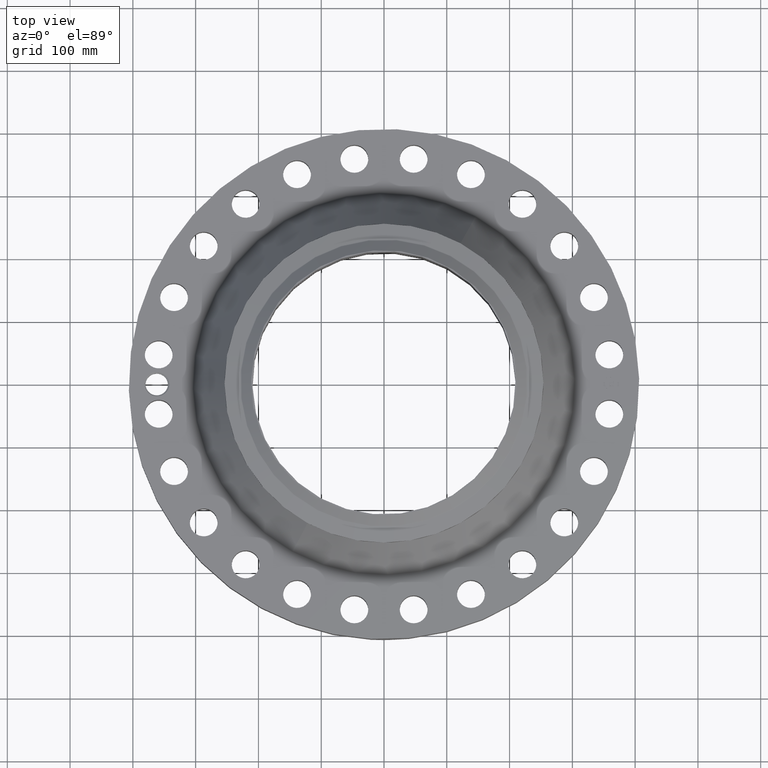
[diagram: clean part render]
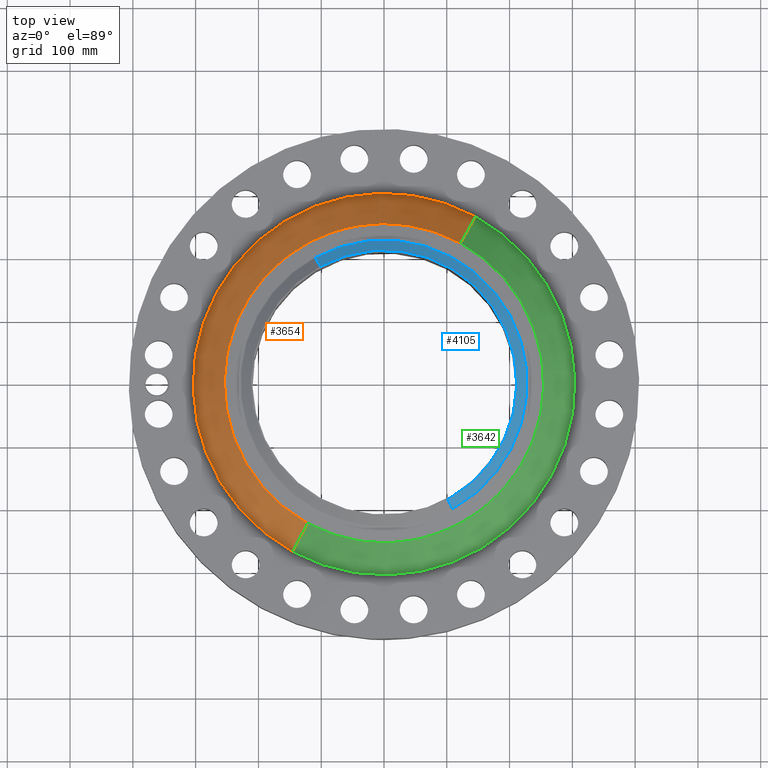
[diagram: same view with three faces highlighted in distinct colors, each labeled with its STEP entity id]
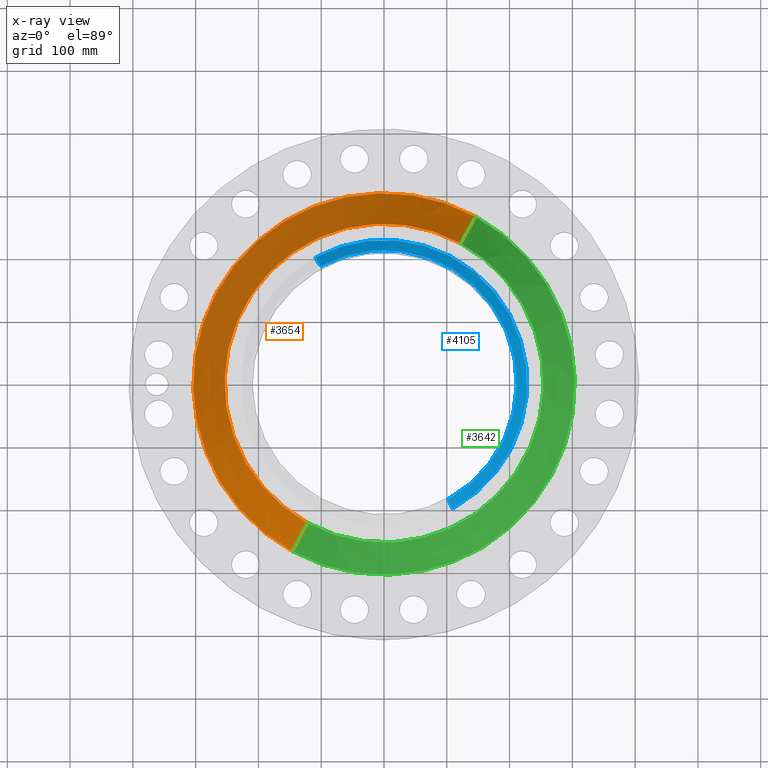
[diagram: x-ray of the same camera — body ghosted, the three highlighted faces saturated]
A machine part, top view with three faces highlighted in distinct colors.
The next image is the same camera in x-ray (body ghosted, the three faces saturated) — at least one of them is partly hidden behind the body in this view.
Their STEP definitions:

[orange] entity #3654 — the highlighted conical surface has half-angle 33.053 deg.
#2936=AXIS2_PLACEMENT_3D('Circle Axis2P3D',#2934,#2935,$) ;
#3615=AXIS2_PLACEMENT_3D('Cone Axis2P3D',#3612,#3613,#3614) ;
#3645=AXIS2_PLACEMENT_3D('Circle Axis2P3D',#3643,#3644,$) ;
#2912=CARTESIAN_POINT('Vertex',(5.73608826587,10.4998391413,3.80455082034)) ;
#2919=CARTESIAN_POINT('Vertex',(-5.73608826587,-10.4998391413,3.80455082034)) ;
#2934=CARTESIAN_POINT('Axis2P3D Location',(0.,0.,3.80455082034)) ;
#3612=CARTESIAN_POINT('Axis2P3D Location',(0.,0.,6.82354013961)) ;
#3617=CARTESIAN_POINT('Line Origine',(5.26517182596,9.63783238013,5.31404547997)) ;
#3621=CARTESIAN_POINT('Vertex',(4.79425538606,8.77582561894,6.82354013961)) ;
#3628=CARTESIAN_POINT('Vertex',(-4.79425538606,-8.77582561894,6.82354013961)) ;
#3631=CARTESIAN_POINT('Line Origine',(-5.26517182596,-9.63783238013,5.31404547997)) ;
#3643=CARTESIAN_POINT('Axis2P3D Location',(0.,0.,6.82354013961)) ;
#2935=DIRECTION('Axis2P3D Direction',(0.,0.,-0.0393700787402)) ;
#3613=DIRECTION('Axis2P3D Direction',(0.,0.,-0.0393700787402)) ;
#3614=DIRECTION('Axis2P3D XDirection',(-0.0188750212049,-0.0345504945626,0.)) ;
#3618=DIRECTION('Vector Direction',(0.0102946221189,0.0188441793884,-0.0329987993511)) ;
#3632=DIRECTION('Vector Direction',(-0.0102946221189,-0.0188441793884,-0.0329987993511)) ;
#3644=DIRECTION('Axis2P3D Direction',(0.,0.,-0.0393700787402)) ;
#3619=VECTOR('Line Direction',#3618,0.0393700787402) ;
#3633=VECTOR('Line Direction',#3632,0.0393700787402) ;
#3649=ORIENTED_EDGE('',*,*,#2938,.F.) ;
#3650=ORIENTED_EDGE('',*,*,#3635,.T.) ;
#3651=ORIENTED_EDGE('',*,*,#3647,.T.) ;
#3652=ORIENTED_EDGE('',*,*,#3623,.F.) ;
#3654=ADVANCED_FACE('PartBody',(#3653),#3616,.T.) ;
#2937=CIRCLE('generated circle',#2936,11.9645029394) ;
#3646=CIRCLE('generated circle',#3645,10.) ;
#3616=CONICAL_SURFACE('Cone',#3615,10.,0.57687799615) ;
#2938=EDGE_CURVE('',#2920,#2913,#2937,.T.) ;
#3623=EDGE_CURVE('',#2913,#3622,#3620,.F.) ;
#3635=EDGE_CURVE('',#2920,#3629,#3634,.F.) ;
#3647=EDGE_CURVE('',#3629,#3622,#3646,.T.) ;
#3648=EDGE_LOOP('',(#3649,#3650,#3651,#3652)) ;
#3653=FACE_OUTER_BOUND('',#3648,.T.) ;
#3620=LINE('Line',#3617,#3619) ;
#3634=LINE('Line',#3631,#3633) ;
#2913=VERTEX_POINT('',#2912) ;
#2920=VERTEX_POINT('',#2919) ;
#3622=VERTEX_POINT('',#3621) ;
#3629=VERTEX_POINT('',#3628) ;

[blue] entity #4105 — the highlighted conical surface has half-angle 52.5 deg.
#3246=AXIS2_PLACEMENT_3D('Circle Axis2P3D',#3244,#3245,$) ;
#4066=AXIS2_PLACEMENT_3D('Cone Axis2P3D',#4063,#4064,#4065) ;
#4096=AXIS2_PLACEMENT_3D('Circle Axis2P3D',#4094,#4095,$) ;
#3244=CARTESIAN_POINT('Axis2P3D Location',(0.,0.,7.75000000003)) ;
#3248=CARTESIAN_POINT('Vertex',(3.99301073591,-7.30915712475,7.75000000003)) ;
#3250=CARTESIAN_POINT('Vertex',(-3.99301073591,7.30915712475,7.75000000003)) ;
#4063=CARTESIAN_POINT('Axis2P3D Location',(0.,0.,7.75000000003)) ;
#4068=CARTESIAN_POINT('Line Origine',(-4.14795203846,7.59277527665,7.5020143726)) ;
#4072=CARTESIAN_POINT('Vertex',(-4.30289334101,7.87639342856,7.25402874516)) ;
#4079=CARTESIAN_POINT('Vertex',(4.30289334101,-7.87639342856,7.25402874516)) ;
#4082=CARTESIAN_POINT('Line Origine',(4.14795203846,-7.59277527665,7.5020143726)) ;
#4094=CARTESIAN_POINT('Axis2P3D Location',(0.,0.,7.25402874516)) ;
#3245=DIRECTION('Axis2P3D Direction',(0.,0.,-0.0393700787402)) ;
#4064=DIRECTION('Axis2P3D Direction',(-0.,-0.,-0.0393700787402)) ;
#4065=DIRECTION('Axis2P3D XDirection',(-0.0188750212049,0.0345504945626,0.)) ;
#4069=DIRECTION('Vector Direction',(-0.014974561121,0.02741075027,-0.023966985394)) ;
#4083=DIRECTION('Vector Direction',(0.014974561121,-0.02741075027,-0.023966985394)) ;
#4095=DIRECTION('Axis2P3D Direction',(0.,0.,-0.0393700787402)) ;
#4070=VECTOR('Line Direction',#4069,0.0393700787402) ;
#4084=VECTOR('Line Direction',#4083,0.0393700787402) ;
#4100=ORIENTED_EDGE('',*,*,#3252,.F.) ;
#4101=ORIENTED_EDGE('',*,*,#4086,.T.) ;
#4102=ORIENTED_EDGE('',*,*,#4098,.T.) ;
#4103=ORIENTED_EDGE('',*,*,#4074,.F.) ;
#4105=ADVANCED_FACE('PartBody',(#4104),#4067,.T.) ;
#3247=CIRCLE('generated circle',#3246,8.32874015751) ;
#4097=CIRCLE('generated circle',#4096,8.97510248106) ;
#4067=CONICAL_SURFACE('Cone',#4066,8.32874015751,0.916297857297) ;
#3252=EDGE_CURVE('',#3249,#3251,#3247,.F.) ;
#4074=EDGE_CURVE('',#3251,#4073,#4071,.T.) ;
#4086=EDGE_CURVE('',#3249,#4080,#4085,.T.) ;
#4098=EDGE_CURVE('',#4080,#4073,#4097,.F.) ;
#4099=EDGE_LOOP('',(#4100,#4101,#4102,#4103)) ;
#4104=FACE_OUTER_BOUND('',#4099,.T.) ;
#4071=LINE('Line',#4068,#4070) ;
#4085=LINE('Line',#4082,#4084) ;
#3249=VERTEX_POINT('',#3248) ;
#3251=VERTEX_POINT('',#3250) ;
#4073=VERTEX_POINT('',#4072) ;
#4080=VERTEX_POINT('',#4079) ;

[green] entity #3642 — the highlighted conical surface has half-angle 33.053 deg.
#2917=AXIS2_PLACEMENT_3D('Circle Axis2P3D',#2915,#2916,$) ;
#3615=AXIS2_PLACEMENT_3D('Cone Axis2P3D',#3612,#3613,#3614) ;
#3626=AXIS2_PLACEMENT_3D('Circle Axis2P3D',#3624,#3625,$) ;
#2912=CARTESIAN_POINT('Vertex',(5.73608826587,10.4998391413,3.80455082034)) ;
#2915=CARTESIAN_POINT('Axis2P3D Location',(0.,0.,3.80455082034)) ;
#2919=CARTESIAN_POINT('Vertex',(-5.73608826587,-10.4998391413,3.80455082034)) ;
#3612=CARTESIAN_POINT('Axis2P3D Location',(0.,0.,6.82354013961)) ;
#3617=CARTESIAN_POINT('Line Origine',(5.26517182596,9.63783238013,5.31404547997)) ;
#3621=CARTESIAN_POINT('Vertex',(4.79425538606,8.77582561894,6.82354013961)) ;
#3624=CARTESIAN_POINT('Axis2P3D Location',(0.,0.,6.82354013961)) ;
#3628=CARTESIAN_POINT('Vertex',(-4.79425538606,-8.77582561894,6.82354013961)) ;
#3631=CARTESIAN_POINT('Line Origine',(-5.26517182596,-9.63783238013,5.31404547997)) ;
#2916=DIRECTION('Axis2P3D Direction',(0.,0.,-0.0393700787402)) ;
#3613=DIRECTION('Axis2P3D Direction',(0.,0.,-0.0393700787402)) ;
#3614=DIRECTION('Axis2P3D XDirection',(-0.0188750212049,-0.0345504945626,0.)) ;
#3618=DIRECTION('Vector Direction',(0.0102946221189,0.0188441793884,-0.0329987993511)) ;
#3625=DIRECTION('Axis2P3D Direction',(0.,0.,-0.0393700787402)) ;
#3632=DIRECTION('Vector Direction',(-0.0102946221189,-0.0188441793884,-0.0329987993511)) ;
#3619=VECTOR('Line Direction',#3618,0.0393700787402) ;
#3633=VECTOR('Line Direction',#3632,0.0393700787402) ;
#3637=ORIENTED_EDGE('',*,*,#2921,.F.) ;
#3638=ORIENTED_EDGE('',*,*,#3623,.T.) ;
#3639=ORIENTED_EDGE('',*,*,#3630,.T.) ;
#3640=ORIENTED_EDGE('',*,*,#3635,.F.) ;
#3642=ADVANCED_FACE('PartBody',(#3641),#3616,.T.) ;
#2918=CIRCLE('generated circle',#2917,11.9645029394) ;
#3627=CIRCLE('generated circle',#3626,10.) ;
#3616=CONICAL_SURFACE('Cone',#3615,10.,0.57687799615) ;
#2921=EDGE_CURVE('',#2913,#2920,#2918,.T.) ;
#3623=EDGE_CURVE('',#2913,#3622,#3620,.F.) ;
#3630=EDGE_CURVE('',#3622,#3629,#3627,.T.) ;
#3635=EDGE_CURVE('',#2920,#3629,#3634,.F.) ;
#3636=EDGE_LOOP('',(#3637,#3638,#3639,#3640)) ;
#3641=FACE_OUTER_BOUND('',#3636,.T.) ;
#3620=LINE('Line',#3617,#3619) ;
#3634=LINE('Line',#3631,#3633) ;
#2913=VERTEX_POINT('',#2912) ;
#2920=VERTEX_POINT('',#2919) ;
#3622=VERTEX_POINT('',#3621) ;
#3629=VERTEX_POINT('',#3628) ;